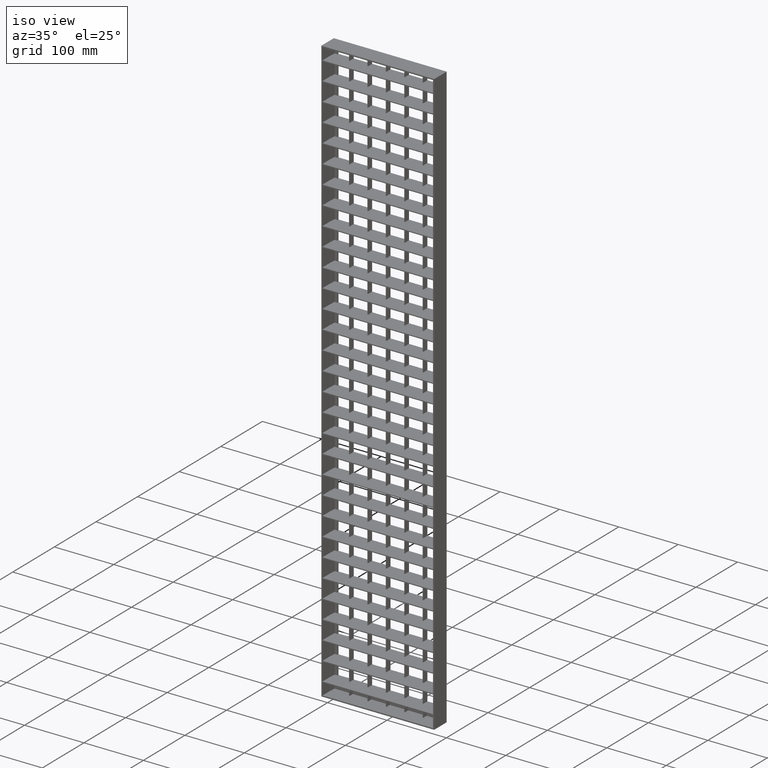
[diagram: clean part render]
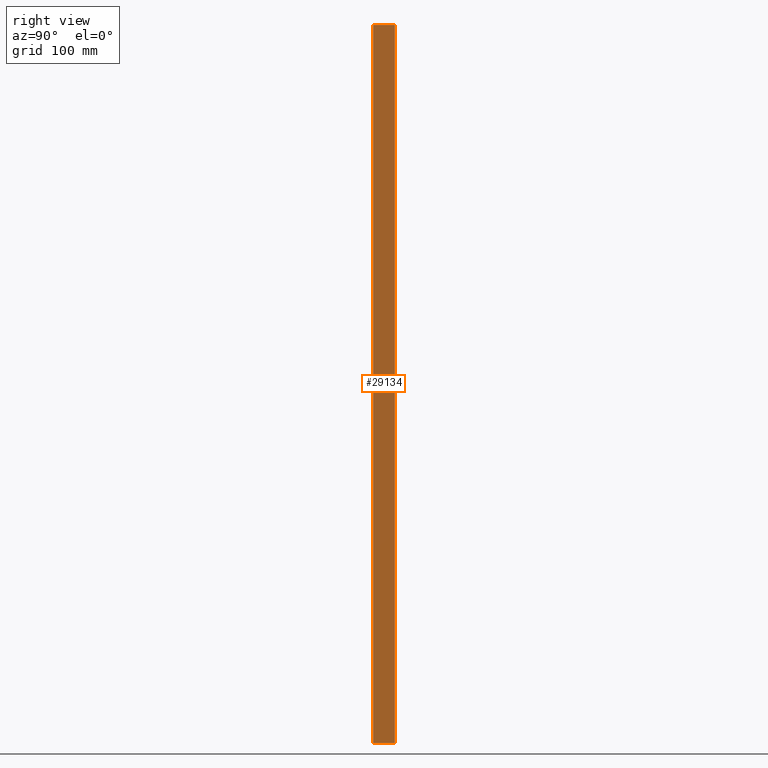
[diagram: tour spotlight — one face highlighted and labeled with its STEP entity id]
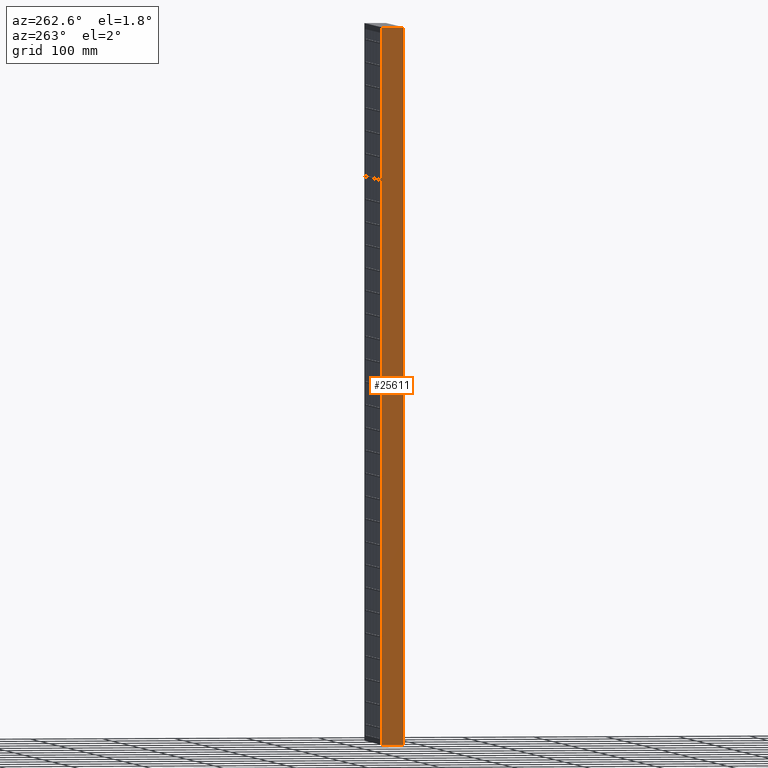
[diagram: tour spotlight — one face highlighted and labeled with its STEP entity id]
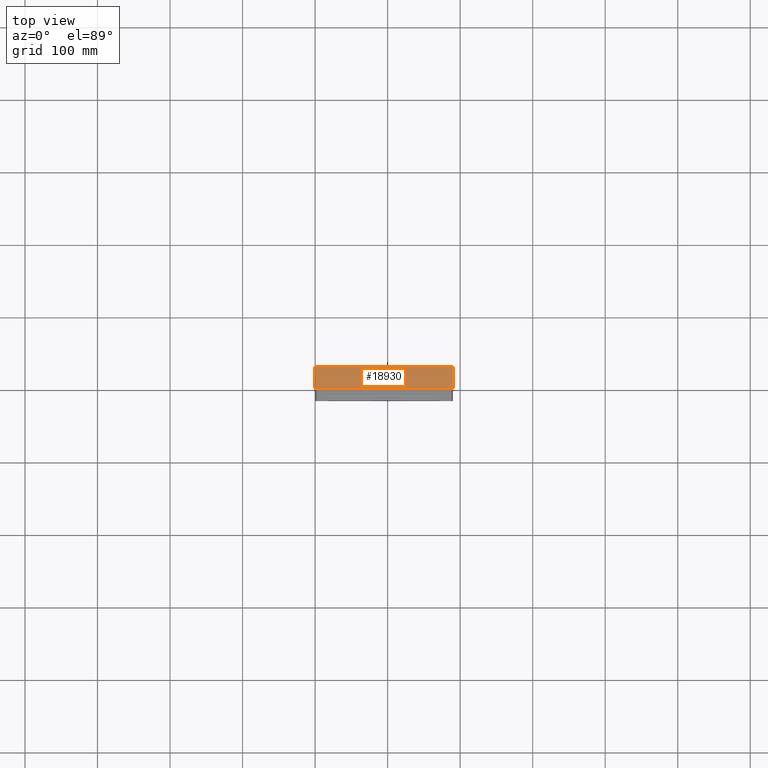
[diagram: tour spotlight — one face highlighted and labeled with its STEP entity id]
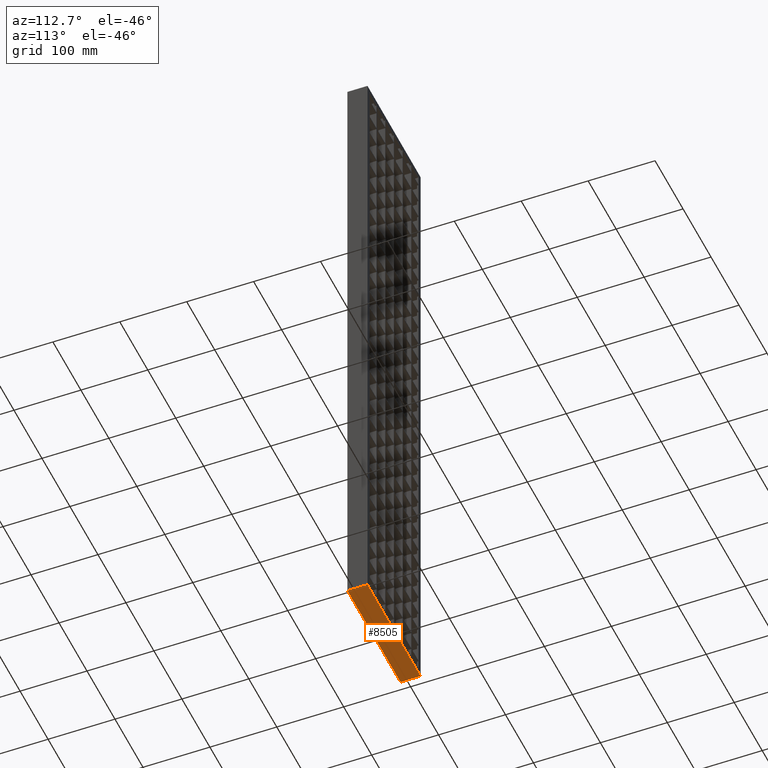
[diagram: tour spotlight — one face highlighted and labeled with its STEP entity id]
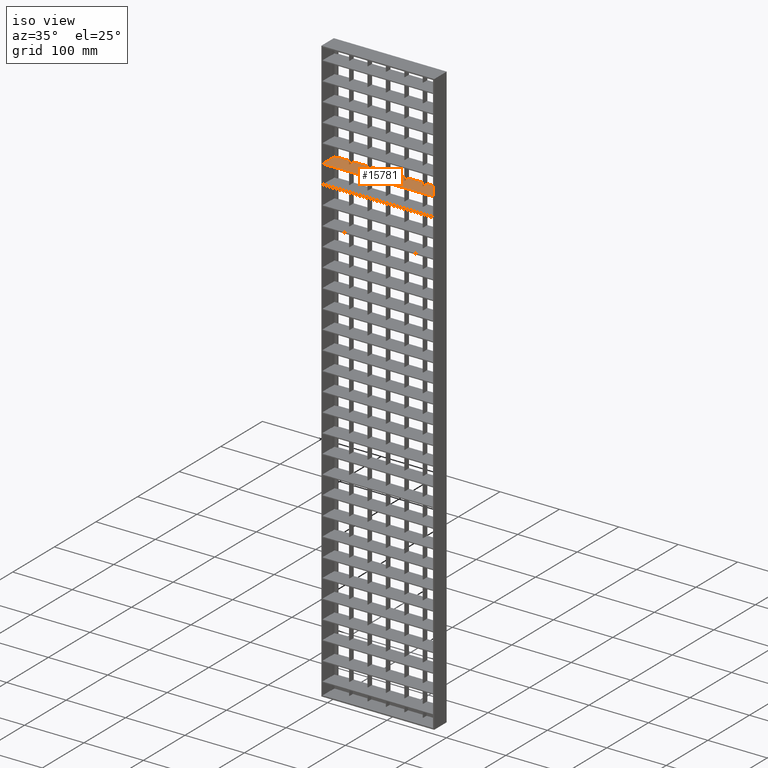
[diagram: tour spotlight — one face highlighted and labeled with its STEP entity id]
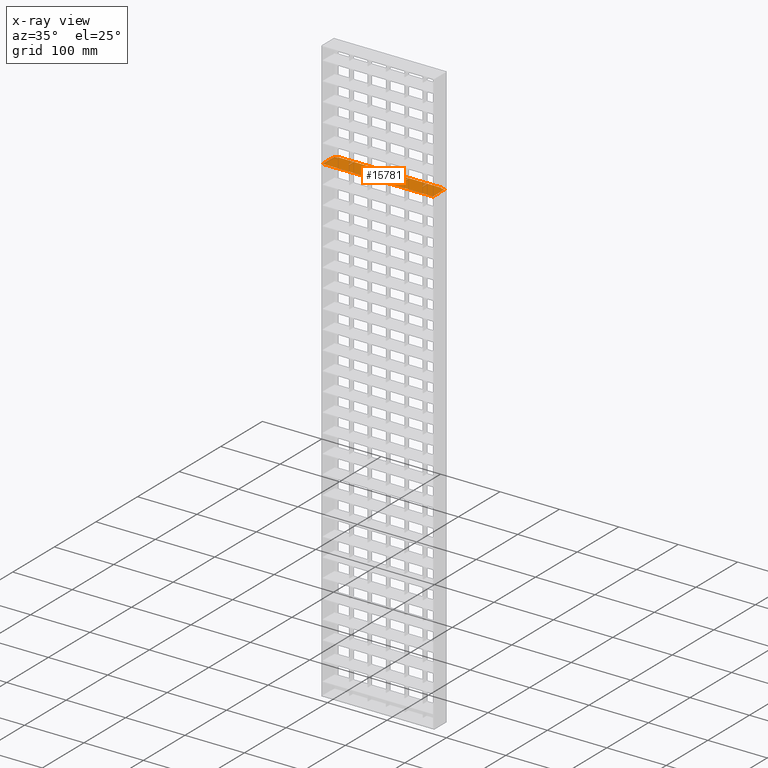
[diagram: x-ray of the same camera — body ghosted, this tour face saturated]
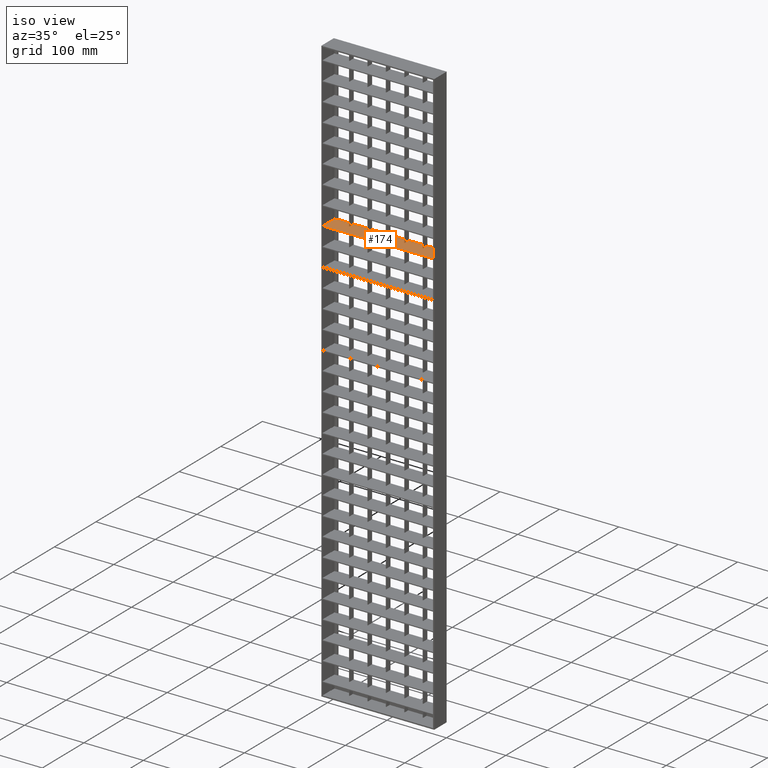
[diagram: tour spotlight — one face highlighted and labeled with its STEP entity id]
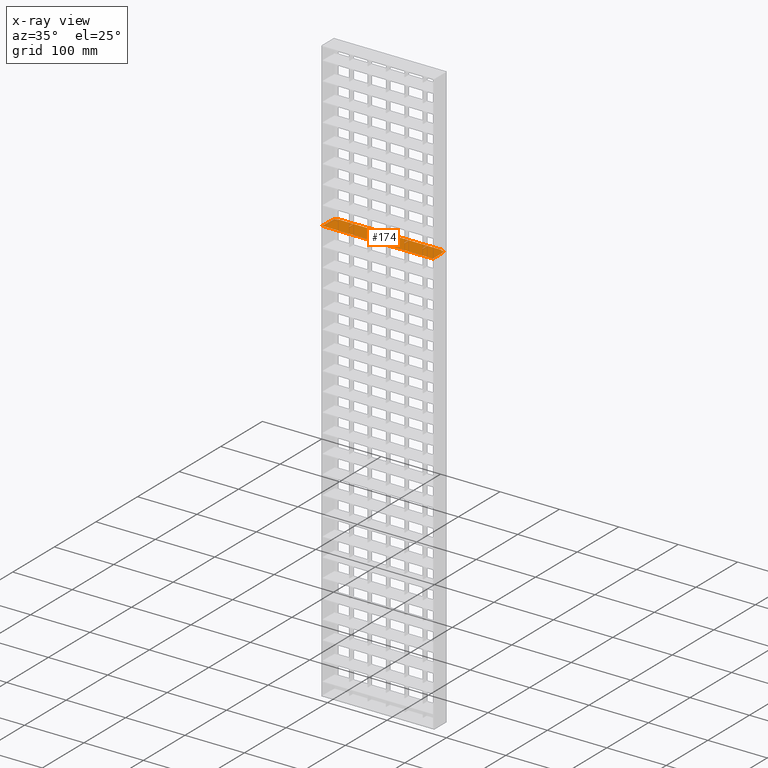
[diagram: x-ray of the same camera — body ghosted, this tour face saturated]
A machine part: a face-by-face anatomy tour. The part has 896 B-rep faces; the first image is the clean iso view, then the 6 largest visible faces are spotlighted one at a time (largest first), each with its STEP entity span.

Face 1 — right view, entity #29134. In plain terms, the highlighted planar face has unit normal (1, -0, -0).
Definition (entity closure, byte-faithful):
#1352 = DIRECTION ( 'NONE',  ( 5.607186993056345300E-017, 0.0000000000000000000, 1.000000000000000000 ) ) ;
#1578 = ORIENTED_EDGE ( 'NONE', *, *, #7704, .F. ) ;
#4970 = VERTEX_POINT ( 'NONE', #21859 ) ;
#7704 = EDGE_CURVE ( 'NONE', #17029, #23637, #22984, .T. ) ;
#8785 = CARTESIAN_POINT ( 'NONE',  ( 189.9999999999999400, 15.00000000000000000, -990.0000000000000000 ) ) ;
#8796 = LINE ( 'NONE', #15977, #27640 ) ;
#10700 = EDGE_CURVE ( 'NONE', #4970, #19106, #23129, .T. ) ;
#11301 = DIRECTION ( 'NONE',  ( 5.607186993056345300E-017, 0.0000000000000000000, 1.000000000000000000 ) ) ;
#11700 = AXIS2_PLACEMENT_3D ( 'NONE', #31270, #15573, #28543 ) ;
#12402 = CARTESIAN_POINT ( 'NONE',  ( 190.0000000000000000, -15.00000000000000000, -990.0000000000000000 ) ) ;
#15146 = VECTOR ( 'NONE', #1352, 1000.000000000000000 ) ;
#15254 = FACE_OUTER_BOUND ( 'NONE', #22521, .T. ) ;
#15410 = ORIENTED_EDGE ( 'NONE', *, *, #10700, .T. ) ;
#15573 = DIRECTION ( 'NONE',  ( 1.000000000000000000, -3.061616997868382600E-016, -5.607186993056345300E-017 ) ) ;
#15977 = CARTESIAN_POINT ( 'NONE',  ( 190.0000000000000300, 14.99999999999965500, 0.0000000000000000000 ) ) ;
#16370 = VECTOR ( 'NONE', #18693, 1000.000000000000000 ) ;
#16944 = ORIENTED_EDGE ( 'NONE', *, *, #30506, .T. ) ;
#17029 = VERTEX_POINT ( 'NONE', #12402 ) ;
#17265 = EDGE_CURVE ( 'NONE', #19106, #23637, #8796, .T. ) ;
#18693 = DIRECTION ( 'NONE',  ( 3.061616997868382600E-016, 1.000000000000000000, -3.061616997868382600E-016 ) ) ;
#18988 = CARTESIAN_POINT ( 'NONE',  ( 190.0000000000000000, -15.00000000000000000, -990.0000000000000000 ) ) ;
#19106 = VERTEX_POINT ( 'NONE', #28310 ) ;
#21203 = CARTESIAN_POINT ( 'NONE',  ( 189.9999999999999700, 14.99999999999995900, -990.0000000000000000 ) ) ;
#21859 = CARTESIAN_POINT ( 'NONE',  ( 189.9999999999999400, 15.00000000000000000, -990.0000000000000000 ) ) ;
#22521 = EDGE_LOOP ( 'NONE', ( #15410, #25048, #1578, #16944 ) ) ;
#22960 = LINE ( 'NONE', #21203, #16370 ) ;
#22984 = LINE ( 'NONE', #18988, #15146 ) ;
#23129 = LINE ( 'NONE', #8785, #30886 ) ;
#23637 = VERTEX_POINT ( 'NONE', #32762 ) ;
#25048 = ORIENTED_EDGE ( 'NONE', *, *, #17265, .T. ) ;
#26754 = DIRECTION ( 'NONE',  ( -3.061616997868382600E-016, -1.000000000000000000, -3.061616997868383600E-016 ) ) ;
#27640 = VECTOR ( 'NONE', #26754, 1000.000000000000000 ) ;
#28310 = CARTESIAN_POINT ( 'NONE',  ( 190.0000000000000000, 15.00000000000000000, -2.775557561562891400E-014 ) ) ;
#28543 = DIRECTION ( 'NONE',  ( 3.061616997868382600E-016, 1.000000000000000000, 0.0000000000000000000 ) ) ;
#28751 = PLANE ( 'NONE',  #11700 ) ;
#29134 = ADVANCED_FACE ( 'NONE', ( #15254 ), #28751, .T. ) ;
#30506 = EDGE_CURVE ( 'NONE', #17029, #4970, #22960, .T. ) ;
#30886 = VECTOR ( 'NONE', #11301, 1000.000000000000000 ) ;
#31270 = CARTESIAN_POINT ( 'NONE',  ( 189.9999999999999700, 14.99999999999995900, -990.0000000000000000 ) ) ;
#32762 = CARTESIAN_POINT ( 'NONE',  ( 190.0000000000000600, -15.00000000000000000, 1.110223024625156500E-013 ) ) ;

Face 2 — auxiliary view, entity #25611. In plain terms, the highlighted planar face has unit normal (-1, -0, 0).
Definition (entity closure, byte-faithful):
#1347 = CARTESIAN_POINT ( 'NONE',  ( -4.898587196589410700E-015, 15.00000000000000000, -1052.096698785040000 ) ) ;
#2026 = DIRECTION ( 'NONE',  ( 3.061616997868382600E-016, -1.000000000000000000, 0.0000000000000000000 ) ) ;
#2729 = LINE ( 'NONE', #4209, #12513 ) ;
#2903 = ORIENTED_EDGE ( 'NONE', *, *, #30714, .F. ) ;
#3748 = AXIS2_PLACEMENT_3D ( 'NONE', #1347, #19548, #2026 ) ;
#4209 = CARTESIAN_POINT ( 'NONE',  ( -4.898587196589417000E-015, 15.00000000000001800, -990.0000000000000000 ) ) ;
#4393 = FACE_OUTER_BOUND ( 'NONE', #15118, .T. ) ;
#6542 = LINE ( 'NONE', #16387, #18024 ) ;
#6743 = DIRECTION ( 'NONE',  ( -0.0000000000000000000, -0.0000000000000000000, 1.000000000000000000 ) ) ;
#7227 = CARTESIAN_POINT ( 'NONE',  ( 8.326672684688661400E-014, 15.00000000000000000, -7.466180501988862600E-014 ) ) ;
#9574 = DIRECTION ( 'NONE',  ( 3.061616997868382600E-016, -1.000000000000000000, 3.061616997868382600E-016 ) ) ;
#10966 = ORIENTED_EDGE ( 'NONE', *, *, #20734, .T. ) ;
#12513 = VECTOR ( 'NONE', #9574, 1000.000000000000000 ) ;
#13861 = VERTEX_POINT ( 'NONE', #30416 ) ;
#14315 = VERTEX_POINT ( 'NONE', #32672 ) ;
#14585 = LINE ( 'NONE', #31421, #18311 ) ;
#14791 = CARTESIAN_POINT ( 'NONE',  ( 8.326672684688661400E-014, 15.00000000000000000, -7.466180501988862600E-014 ) ) ;
#15038 = EDGE_CURVE ( 'NONE', #15930, #21876, #16860, .T. ) ;
#15118 = EDGE_LOOP ( 'NONE', ( #25070, #25343, #2903, #10966 ) ) ;
#15930 = VERTEX_POINT ( 'NONE', #23312 ) ;
#16387 = CARTESIAN_POINT ( 'NONE',  ( -4.898587196589410700E-015, 15.00000000000000000, -1052.096698785040000 ) ) ;
#16860 = B_SPLINE_CURVE_WITH_KNOTS ( 'NONE', 3,
 ( #20235, #25161, #20354, #14791 ),
 .UNSPECIFIED., .F., .F.,
 ( 4, 4 ),
 ( 0.0000000000000000000, 1.000000000000000000 ),
 .UNSPECIFIED. ) ;
#18024 = VECTOR ( 'NONE', #6743, 1000.000000000000000 ) ;
#18311 = VECTOR ( 'NONE', #26061, 1000.000000000000000 ) ;
#19548 = DIRECTION ( 'NONE',  ( -1.000000000000000000, -3.061616997868382600E-016, 0.0000000000000000000 ) ) ;
#20235 = CARTESIAN_POINT ( 'NONE',  ( 2.143131898507868200E-015, -15.00000000000000000, 0.0000000000000000000 ) ) ;
#20354 = CARTESIAN_POINT ( 'NONE',  ( -1.836970198721028000E-015, 5.000000000000000900, 0.0000000000000000000 ) ) ;
#20734 = EDGE_CURVE ( 'NONE', #14315, #13861, #2729, .T. ) ;
#21876 = VERTEX_POINT ( 'NONE', #7227 ) ;
#23312 = CARTESIAN_POINT ( 'NONE',  ( 2.143131898507868200E-015, -15.00000000000000000, 0.0000000000000000000 ) ) ;
#25070 = ORIENTED_EDGE ( 'NONE', *, *, #25784, .T. ) ;
#25161 = CARTESIAN_POINT ( 'NONE',  ( 1.224646799147354400E-015, -5.000000000000000900, 0.0000000000000000000 ) ) ;
#25343 = ORIENTED_EDGE ( 'NONE', *, *, #15038, .T. ) ;
#25611 = ADVANCED_FACE ( 'NONE', ( #4393 ), #30625, .T. ) ;
#25784 = EDGE_CURVE ( 'NONE', #13861, #15930, #14585, .T. ) ;
#26061 = DIRECTION ( 'NONE',  ( -0.0000000000000000000, -0.0000000000000000000, 1.000000000000000000 ) ) ;
#30416 = CARTESIAN_POINT ( 'NONE',  ( 4.286263797015736500E-015, -15.00000000000000000, -990.0000000000000000 ) ) ;
#30625 = PLANE ( 'NONE',  #3748 ) ;
#30714 = EDGE_CURVE ( 'NONE', #14315, #21876, #6542, .T. ) ;
#31421 = CARTESIAN_POINT ( 'NONE',  ( 4.286263797015736500E-015, -15.00000000000000000, -1052.096698785040000 ) ) ;
#32672 = CARTESIAN_POINT ( 'NONE',  ( -4.898587196589410700E-015, 15.00000000000000000, -990.0000000000000000 ) ) ;

Face 3 — top view, entity #18930. In plain terms, the highlighted planar face has unit normal (0, 0, -1).
Definition (entity closure, byte-faithful):
#45 = FACE_OUTER_BOUND ( 'NONE', #3443, .T. ) ;
#558 = EDGE_CURVE ( 'NONE', #19106, #21876, #1029, .T. ) ;
#1029 = LINE ( 'NONE', #29113, #13265 ) ;
#1142 = EDGE_CURVE ( 'NONE', #23637, #15930, #13614, .T. ) ;
#1485 = AXIS2_PLACEMENT_3D ( 'NONE', #11563, #25468, #12123 ) ;
#3443 = EDGE_LOOP ( 'NONE', ( #17018, #19279, #21027, #25518 ) ) ;
#7227 = CARTESIAN_POINT ( 'NONE',  ( 8.326672684688661400E-014, 15.00000000000000000, -7.466180501988862600E-014 ) ) ;
#8796 = LINE ( 'NONE', #15977, #27640 ) ;
#11563 = CARTESIAN_POINT ( 'NONE',  ( 190.0000000000000300, 14.99999999999965500, 0.0000000000000000000 ) ) ;
#12123 = DIRECTION ( 'NONE',  ( -1.000000000000000000, 0.0000000000000000000, -3.929568685257302500E-016 ) ) ;
#13265 = VECTOR ( 'NONE', #23533, 1000.000000000000000 ) ;
#13614 = LINE ( 'NONE', #14145, #16510 ) ;
#14145 = CARTESIAN_POINT ( 'NONE',  ( 190.0000000000000600, -15.00000000000000000, 1.110223024625156500E-013 ) ) ;
#14791 = CARTESIAN_POINT ( 'NONE',  ( 8.326672684688661400E-014, 15.00000000000000000, -7.466180501988862600E-014 ) ) ;
#15038 = EDGE_CURVE ( 'NONE', #15930, #21876, #16860, .T. ) ;
#15930 = VERTEX_POINT ( 'NONE', #23312 ) ;
#15977 = CARTESIAN_POINT ( 'NONE',  ( 190.0000000000000300, 14.99999999999965500, 0.0000000000000000000 ) ) ;
#16510 = VECTOR ( 'NONE', #19582, 1000.000000000000000 ) ;
#16860 = B_SPLINE_CURVE_WITH_KNOTS ( 'NONE', 3,
 ( #20235, #25161, #20354, #14791 ),
 .UNSPECIFIED., .F., .F.,
 ( 4, 4 ),
 ( 0.0000000000000000000, 1.000000000000000000 ),
 .UNSPECIFIED. ) ;
#17018 = ORIENTED_EDGE ( 'NONE', *, *, #558, .T. ) ;
#17265 = EDGE_CURVE ( 'NONE', #19106, #23637, #8796, .T. ) ;
#18930 = ADVANCED_FACE ( 'NONE', ( #45 ), #20096, .F. ) ;
#19106 = VERTEX_POINT ( 'NONE', #28310 ) ;
#19279 = ORIENTED_EDGE ( 'NONE', *, *, #15038, .F. ) ;
#19582 = DIRECTION ( 'NONE',  ( -1.000000000000000000, 0.0000000000000000000, -3.929568685257302500E-016 ) ) ;
#20096 = PLANE ( 'NONE',  #1485 ) ;
#20235 = CARTESIAN_POINT ( 'NONE',  ( 2.143131898507868200E-015, -15.00000000000000000, 0.0000000000000000000 ) ) ;
#20354 = CARTESIAN_POINT ( 'NONE',  ( -1.836970198721028000E-015, 5.000000000000000900, 0.0000000000000000000 ) ) ;
#21027 = ORIENTED_EDGE ( 'NONE', *, *, #1142, .F. ) ;
#21876 = VERTEX_POINT ( 'NONE', #7227 ) ;
#23312 = CARTESIAN_POINT ( 'NONE',  ( 2.143131898507868200E-015, -15.00000000000000000, 0.0000000000000000000 ) ) ;
#23533 = DIRECTION ( 'NONE',  ( -1.000000000000000000, 0.0000000000000000000, -3.929568685257302500E-016 ) ) ;
#23637 = VERTEX_POINT ( 'NONE', #32762 ) ;
#25161 = CARTESIAN_POINT ( 'NONE',  ( 1.224646799147354400E-015, -5.000000000000000900, 0.0000000000000000000 ) ) ;
#25468 = DIRECTION ( 'NONE',  ( 3.929568685257302500E-016, 3.061616997868382600E-016, -1.000000000000000000 ) ) ;
#25518 = ORIENTED_EDGE ( 'NONE', *, *, #17265, .F. ) ;
#26754 = DIRECTION ( 'NONE',  ( -3.061616997868382600E-016, -1.000000000000000000, -3.061616997868383600E-016 ) ) ;
#27640 = VECTOR ( 'NONE', #26754, 1000.000000000000000 ) ;
#28310 = CARTESIAN_POINT ( 'NONE',  ( 190.0000000000000000, 15.00000000000000000, -2.775557561562891400E-014 ) ) ;
#29113 = CARTESIAN_POINT ( 'NONE',  ( 190.0000000000000000, 15.00000000000000000, -2.775557561562891400E-014 ) ) ;
#32762 = CARTESIAN_POINT ( 'NONE',  ( 190.0000000000000600, -15.00000000000000000, 1.110223024625156500E-013 ) ) ;

Face 4 — auxiliary view, entity #8505. In plain terms, the highlighted planar face has unit normal (-0, 0, 1).
Definition (entity closure, byte-faithful):
#1614 = FACE_OUTER_BOUND ( 'NONE', #5045, .T. ) ;
#2704 = DIRECTION ( 'NONE',  ( -0.0000000000000000000, 3.061616997868382600E-016, 1.000000000000000000 ) ) ;
#2729 = LINE ( 'NONE', #4209, #12513 ) ;
#3626 = ORIENTED_EDGE ( 'NONE', *, *, #23255, .F. ) ;
#4209 = CARTESIAN_POINT ( 'NONE',  ( -4.898587196589417000E-015, 15.00000000000001800, -990.0000000000000000 ) ) ;
#4879 = PLANE ( 'NONE',  #17123 ) ;
#4970 = VERTEX_POINT ( 'NONE', #21859 ) ;
#4990 = LINE ( 'NONE', #21099, #11118 ) ;
#5045 = EDGE_LOOP ( 'NONE', ( #19423, #3626, #16202, #15390 ) ) ;
#8505 = ADVANCED_FACE ( 'NONE', ( #1614 ), #4879, .F. ) ;
#9574 = DIRECTION ( 'NONE',  ( 3.061616997868382600E-016, -1.000000000000000000, 3.061616997868382600E-016 ) ) ;
#11118 = VECTOR ( 'NONE', #13279, 1000.000000000000000 ) ;
#12229 = LINE ( 'NONE', #15686, #13894 ) ;
#12402 = CARTESIAN_POINT ( 'NONE',  ( 190.0000000000000000, -15.00000000000000000, -990.0000000000000000 ) ) ;
#12513 = VECTOR ( 'NONE', #9574, 1000.000000000000000 ) ;
#12742 = EDGE_CURVE ( 'NONE', #14315, #4970, #12229, .T. ) ;
#12749 = CARTESIAN_POINT ( 'NONE',  ( -4.898587196589417000E-015, 15.00000000000001800, -990.0000000000000000 ) ) ;
#12864 = DIRECTION ( 'NONE',  ( 0.0000000000000000000, -1.000000000000000000, 3.061616997868382600E-016 ) ) ;
#13279 = DIRECTION ( 'NONE',  ( 1.000000000000000000, 0.0000000000000000000, 0.0000000000000000000 ) ) ;
#13861 = VERTEX_POINT ( 'NONE', #30416 ) ;
#13894 = VECTOR ( 'NONE', #33910, 1000.000000000000000 ) ;
#14315 = VERTEX_POINT ( 'NONE', #32672 ) ;
#15390 = ORIENTED_EDGE ( 'NONE', *, *, #12742, .T. ) ;
#15686 = CARTESIAN_POINT ( 'NONE',  ( -4.898587196589410700E-015, 15.00000000000000000, -990.0000000000000000 ) ) ;
#16202 = ORIENTED_EDGE ( 'NONE', *, *, #20734, .F. ) ;
#16370 = VECTOR ( 'NONE', #18693, 1000.000000000000000 ) ;
#17029 = VERTEX_POINT ( 'NONE', #12402 ) ;
#17123 = AXIS2_PLACEMENT_3D ( 'NONE', #12749, #2704, #12864 ) ;
#18693 = DIRECTION ( 'NONE',  ( 3.061616997868382600E-016, 1.000000000000000000, -3.061616997868382600E-016 ) ) ;
#19423 = ORIENTED_EDGE ( 'NONE', *, *, #30506, .F. ) ;
#20734 = EDGE_CURVE ( 'NONE', #14315, #13861, #2729, .T. ) ;
#21099 = CARTESIAN_POINT ( 'NONE',  ( 4.286263797015736500E-015, -15.00000000000000000, -990.0000000000000000 ) ) ;
#21203 = CARTESIAN_POINT ( 'NONE',  ( 189.9999999999999700, 14.99999999999995900, -990.0000000000000000 ) ) ;
#21859 = CARTESIAN_POINT ( 'NONE',  ( 189.9999999999999400, 15.00000000000000000, -990.0000000000000000 ) ) ;
#22960 = LINE ( 'NONE', #21203, #16370 ) ;
#23255 = EDGE_CURVE ( 'NONE', #13861, #17029, #4990, .T. ) ;
#30416 = CARTESIAN_POINT ( 'NONE',  ( 4.286263797015736500E-015, -15.00000000000000000, -990.0000000000000000 ) ) ;
#30506 = EDGE_CURVE ( 'NONE', #17029, #4970, #22960, .T. ) ;
#32672 = CARTESIAN_POINT ( 'NONE',  ( -4.898587196589410700E-015, 15.00000000000000000, -990.0000000000000000 ) ) ;
#33910 = DIRECTION ( 'NONE',  ( 1.000000000000000000, 0.0000000000000000000, 0.0000000000000000000 ) ) ;

Face 5 — iso view, entity #15781. An x-ray twin of the same camera follows (body ghosted, this face saturated) — the face is partly hidden behind the body. In plain terms, the highlighted planar face has unit normal (0, 0, 1).
Definition (entity closure, byte-faithful):
#159 = VECTOR ( 'NONE', #26565, 1000.000000000000000 ) ;
#225 = CARTESIAN_POINT ( 'NONE',  ( 7.999999999999996400, 13.00000000000000400, -179.2500000000000300 ) ) ;
#305 = LINE ( 'NONE', #27065, #23676 ) ;
#894 = CARTESIAN_POINT ( 'NONE',  ( 33.49999999999997200, 5.000000000000004400, -179.2500000000000300 ) ) ;
#1019 = EDGE_CURVE ( 'NONE', #20388, #29657, #7909, .T. ) ;
#1270 = VECTOR ( 'NONE', #32149, 1000.000000000000000 ) ;
#1324 = VECTOR ( 'NONE', #7806, 1000.000000000000000 ) ;
#1504 = VERTEX_POINT ( 'NONE', #15274 ) ;
#1618 = CARTESIAN_POINT ( 'NONE',  ( 33.49999999999997200, -14.99999999999994000, -179.2500000000000300 ) ) ;
#1686 = ORIENTED_EDGE ( 'NONE', *, *, #24105, .F. ) ;
#1777 = VERTEX_POINT ( 'NONE', #894 ) ;
#2144 = CARTESIAN_POINT ( 'NONE',  ( 156.5000000000000300, 15.00000000000003900, -179.2500000000000300 ) ) ;
#2172 = VECTOR ( 'NONE', #19618, 1000.000000000000000 ) ;
#2230 = CARTESIAN_POINT ( 'NONE',  ( 95.49999999999997200, -14.99999999999994000, -179.2500000000000300 ) ) ;
#2255 = CARTESIAN_POINT ( 'NONE',  ( 2.000000000000001800, -15.00000000000000700, -179.2500000000000300 ) ) ;
#2291 = CARTESIAN_POINT ( 'NONE',  ( 156.5000000000000300, -14.99999999999994000, -179.2500000000000300 ) ) ;
#2610 = VECTOR ( 'NONE', #26514, 1000.000000000000000 ) ;
#2644 = CARTESIAN_POINT ( 'NONE',  ( 126.5000000000000600, 15.00000000000000200, -179.2500000000002600 ) ) ;
#2877 = LINE ( 'NONE', #18514, #27883 ) ;
#3456 = CARTESIAN_POINT ( 'NONE',  ( 182.0000000000000600, 12.99999999999991300, -179.2500000000000300 ) ) ;
#3474 = VERTEX_POINT ( 'NONE', #33657 ) ;
#3488 = DIRECTION ( 'NONE',  ( 1.000000000000000000, 0.0000000000000000000, -0.0000000000000000000 ) ) ;
#3849 = LINE ( 'NONE', #25939, #12417 ) ;
#3902 = ORIENTED_EDGE ( 'NONE', *, *, #25460, .F. ) ;
#3939 = FACE_OUTER_BOUND ( 'NONE', #20138, .T. ) ;
#3984 = DIRECTION ( 'NONE',  ( -1.000000000000000000, 0.0000000000000000000, 0.0000000000000000000 ) ) ;
#3986 = VERTEX_POINT ( 'NONE', #16825 ) ;
#4056 = DIRECTION ( 'NONE',  ( 0.0000000000000000000, 0.0000000000000000000, 1.000000000000000000 ) ) ;
#4281 = CARTESIAN_POINT ( 'NONE',  ( 32.49999999999997200, -14.99999999999994000, -179.2500000000000300 ) ) ;
#4318 = DIRECTION ( 'NONE',  ( -1.000000000000000000, -3.061616997868382600E-016, 0.0000000000000000000 ) ) ;
#4358 = EDGE_CURVE ( 'NONE', #30830, #33189, #13730, .T. ) ;
#4415 = CARTESIAN_POINT ( 'NONE',  ( 63.49999999999997200, -14.99999999999994000, -179.2500000000000300 ) ) ;
#4473 = ORIENTED_EDGE ( 'NONE', *, *, #17020, .T. ) ;
#4643 = VERTEX_POINT ( 'NONE', #20076 ) ;
#5122 = VECTOR ( 'NONE', #4318, 1000.000000000000000 ) ;
#5324 = DIRECTION ( 'NONE',  ( -1.000000000000000000, 0.0000000000000000000, 0.0000000000000000000 ) ) ;
#5770 = CARTESIAN_POINT ( 'NONE',  ( 218.0374765917512100, 5.000000000000000900, -179.2500000000000300 ) ) ;
#5870 = CARTESIAN_POINT ( 'NONE',  ( 94.99999999999994300, 13.00000000000000400, -179.2500000000000300 ) ) ;
#5974 = CARTESIAN_POINT ( 'NONE',  ( 33.49999999999997200, 15.00000000000000200, -179.2500000000000300 ) ) ;
#6111 = CARTESIAN_POINT ( 'NONE',  ( 2.499999999999974200, 13.00000000000000400, -179.2500000000000300 ) ) ;
#6209 = LINE ( 'NONE', #18713, #1324 ) ;
#6524 = EDGE_CURVE ( 'NONE', #24657, #9382, #24671, .T. ) ;
#6561 = LINE ( 'NONE', #4415, #14325 ) ;
#6630 = CARTESIAN_POINT ( 'NONE',  ( 218.0374765917511900, 15.00000000000005900, -179.2500000000000300 ) ) ;
#6790 = LINE ( 'NONE', #1618, #23217 ) ;
#6851 = LINE ( 'NONE', #26530, #13802 ) ;
#6984 = ORIENTED_EDGE ( 'NONE', *, *, #25401, .T. ) ;
#7247 = EDGE_CURVE ( 'NONE', #31078, #4643, #30708, .T. ) ;
#7386 = VECTOR ( 'NONE', #23104, 1000.000000000000000 ) ;
#7469 = CARTESIAN_POINT ( 'NONE',  ( 64.49999999999997200, 5.000000000000004400, -179.2500000000000300 ) ) ;
#7651 = DIRECTION ( 'NONE',  ( -1.000000000000000000, 0.0000000000000000000, 0.0000000000000000000 ) ) ;
#7769 = VECTOR ( 'NONE', #15105, 1000.000000000000000 ) ;
#7806 = DIRECTION ( 'NONE',  ( -1.000000000000000000, -3.061616997868382600E-016, 0.0000000000000000000 ) ) ;
#7909 = LINE ( 'NONE', #10947, #159 ) ;
#8054 = LINE ( 'NONE', #8738, #11343 ) ;
#8252 = CARTESIAN_POINT ( 'NONE',  ( 218.0374765917511900, 15.00000000000005900, -179.2500000000000300 ) ) ;
#8533 = ORIENTED_EDGE ( 'NONE', *, *, #32827, .F. ) ;
#8727 = VECTOR ( 'NONE', #28197, 1000.000000000000000 ) ;
#8738 = CARTESIAN_POINT ( 'NONE',  ( 2.499999999999974200, -14.99999999999994000, -179.2500000000000300 ) ) ;
#8778 = CARTESIAN_POINT ( 'NONE',  ( 156.5000000000000300, 5.000000000000002700, -179.2500000000002600 ) ) ;
#8937 = VERTEX_POINT ( 'NONE', #22853 ) ;
#9261 = EDGE_CURVE ( 'NONE', #31119, #33044, #305, .T. ) ;
#9382 = VERTEX_POINT ( 'NONE', #27404 ) ;
#9454 = CARTESIAN_POINT ( 'NONE',  ( 218.0374765917511900, 15.00000000000005900, -179.2500000000000300 ) ) ;
#9672 = LINE ( 'NONE', #29318, #29786 ) ;
#9833 = CARTESIAN_POINT ( 'NONE',  ( 157.5000000000000300, -14.99999999999994000, -179.2500000000000300 ) ) ;
#10030 = CARTESIAN_POINT ( 'NONE',  ( 7.999999999999996400, 13.00000000000000400, -179.2500000000000300 ) ) ;
#10077 = ORIENTED_EDGE ( 'NONE', *, *, #31801, .T. ) ;
#10508 = EDGE_CURVE ( 'NONE', #31838, #31119, #14084, .T. ) ;
#10888 = CARTESIAN_POINT ( 'NONE',  ( 7.999999999999994700, 15.00000000000000400, -179.2500000000000300 ) ) ;
#10901 = DIRECTION ( 'NONE',  ( -0.0000000000000000000, 1.000000000000000000, 0.0000000000000000000 ) ) ;
#10947 = CARTESIAN_POINT ( 'NONE',  ( 2.000000000000004900, -15.00000000000000000, -179.2500000000000300 ) ) ;
#11211 = LINE ( 'NONE', #4281, #17391 ) ;
#11244 = EDGE_CURVE ( 'NONE', #22156, #30830, #11559, .T. ) ;
#11290 = ORIENTED_EDGE ( 'NONE', *, *, #6524, .T. ) ;
#11343 = VECTOR ( 'NONE', #16891, 1000.000000000000000 ) ;
#11559 = LINE ( 'NONE', #3456, #2172 ) ;
#11702 = CARTESIAN_POINT ( 'NONE',  ( 218.0374765917512100, -14.99999999999994000, -179.2500000000000300 ) ) ;
#11782 = CARTESIAN_POINT ( 'NONE',  ( 218.0374765917512100, -14.99999999999994000, -179.2500000000000300 ) ) ;
#11975 = VERTEX_POINT ( 'NONE', #8778 ) ;
#11991 = LINE ( 'NONE', #5870, #2610 ) ;
#12069 = ORIENTED_EDGE ( 'NONE', *, *, #29604, .T. ) ;
#12166 = VERTEX_POINT ( 'NONE', #28360 ) ;
#12174 = EDGE_CURVE ( 'NONE', #26519, #14209, #14350, .T. ) ;
#12321 = EDGE_CURVE ( 'NONE', #24284, #1504, #2877, .T. ) ;
#12417 = VECTOR ( 'NONE', #13071, 1000.000000000000000 ) ;
#12453 = ORIENTED_EDGE ( 'NONE', *, *, #28631, .T. ) ;
#12481 = CARTESIAN_POINT ( 'NONE',  ( 187.5000000000000600, -14.99999999999994000, -179.2500000000000300 ) ) ;
#12803 = ORIENTED_EDGE ( 'NONE', *, *, #15373, .T. ) ;
#13071 = DIRECTION ( 'NONE',  ( -1.000000000000000000, -3.061616997868382600E-016, 0.0000000000000000000 ) ) ;
#13496 = LINE ( 'NONE', #13800, #1270 ) ;
#13526 = ORIENTED_EDGE ( 'NONE', *, *, #4358, .T. ) ;
#13730 = LINE ( 'NONE', #26534, #14941 ) ;
#13800 = CARTESIAN_POINT ( 'NONE',  ( 218.0374765917512100, 5.000000000000000900, -179.2500000000000300 ) ) ;
#13802 = VECTOR ( 'NONE', #5324, 1000.000000000000000 ) ;
#14084 = LINE ( 'NONE', #10030, #26847 ) ;
#14209 = VERTEX_POINT ( 'NONE', #21913 ) ;
#14267 = CARTESIAN_POINT ( 'NONE',  ( 125.5000000000000600, 5.000000000000002700, -179.2500000000002600 ) ) ;
#14325 = VECTOR ( 'NONE', #20135, 1000.000000000000000 ) ;
#14350 = LINE ( 'NONE', #18167, #7386 ) ;
#14408 = ORIENTED_EDGE ( 'NONE', *, *, #11244, .T. ) ;
#14410 = CARTESIAN_POINT ( 'NONE',  ( 63.49999999999997200, 5.000000000000000900, -179.2500000000000300 ) ) ;
#14512 = VERTEX_POINT ( 'NONE', #25123 ) ;
#14912 = ORIENTED_EDGE ( 'NONE', *, *, #30272, .T. ) ;
#14941 = VECTOR ( 'NONE', #16326, 1000.000000000000000 ) ;
#15009 = CARTESIAN_POINT ( 'NONE',  ( 95.49999999999997200, 15.00000000000002000, -179.2500000000000300 ) ) ;
#15105 = DIRECTION ( 'NONE',  ( 0.0000000000000000000, -1.000000000000000000, 0.0000000000000000000 ) ) ;
#15234 = VERTEX_POINT ( 'NONE', #21440 ) ;
#15274 = CARTESIAN_POINT ( 'NONE',  ( 64.49999999999997200, 15.00000000000001200, -179.2500000000000300 ) ) ;
#15373 = EDGE_CURVE ( 'NONE', #14512, #24618, #20404, .T. ) ;
#15689 = ORIENTED_EDGE ( 'NONE', *, *, #21387, .F. ) ;
#15696 = LINE ( 'NONE', #11782, #8727 ) ;
#15781 = ADVANCED_FACE ( 'NONE', ( #3939 ), #33158, .T. ) ;
#15947 = ORIENTED_EDGE ( 'NONE', *, *, #29096, .F. ) ;
#16057 = VECTOR ( 'NONE', #3488, 1000.000000000000000 ) ;
#16326 = DIRECTION ( 'NONE',  ( -1.000000000000000000, -3.061616997868382600E-016, 0.0000000000000000000 ) ) ;
#16460 = LINE ( 'NONE', #5770, #16057 ) ;
#16729 = VERTEX_POINT ( 'NONE', #29535 ) ;
#16825 = CARTESIAN_POINT ( 'NONE',  ( 32.49999999999997200, 15.00000000000000200, -179.2500000000002600 ) ) ;
#16891 = DIRECTION ( 'NONE',  ( -0.0000000000000000000, 1.000000000000000000, 0.0000000000000000000 ) ) ;
#16893 = VERTEX_POINT ( 'NONE', #14267 ) ;
#17020 = EDGE_CURVE ( 'NONE', #31599, #26519, #30535, .T. ) ;
#17391 = VECTOR ( 'NONE', #17476, 1000.000000000000000 ) ;
#17476 = DIRECTION ( 'NONE',  ( 0.0000000000000000000, -1.000000000000000000, 0.0000000000000000000 ) ) ;
#17617 = ORIENTED_EDGE ( 'NONE', *, *, #28961, .F. ) ;
#17884 = LINE ( 'NONE', #19260, #26894 ) ;
#18153 = LINE ( 'NONE', #30927, #20634 ) ;
#18167 = CARTESIAN_POINT ( 'NONE',  ( 126.5000000000000600, -14.99999999999994000, -179.2500000000000300 ) ) ;
#18347 = DIRECTION ( 'NONE',  ( 1.000000000000000000, 0.0000000000000000000, -0.0000000000000000000 ) ) ;
#18511 = VECTOR ( 'NONE', #7651, 1000.000000000000000 ) ;
#18514 = CARTESIAN_POINT ( 'NONE',  ( 64.49999999999997200, -14.99999999999994000, -179.2500000000000300 ) ) ;
#18695 = EDGE_CURVE ( 'NONE', #21292, #25013, #6209, .T. ) ;
#18713 = CARTESIAN_POINT ( 'NONE',  ( 218.0374765917511900, 15.00000000000005900, -179.2500000000000300 ) ) ;
#19260 = CARTESIAN_POINT ( 'NONE',  ( 125.5000000000000600, -14.99999999999994000, -179.2500000000000300 ) ) ;
#19512 = DIRECTION ( 'NONE',  ( -1.000000000000000000, 0.0000000000000000000, 0.0000000000000000000 ) ) ;
#19618 = DIRECTION ( 'NONE',  ( 8.673617379884037400E-016, 1.000000000000000000, -0.0000000000000000000 ) ) ;
#19795 = EDGE_CURVE ( 'NONE', #11975, #31599, #22527, .T. ) ;
#19824 = DIRECTION ( 'NONE',  ( -1.000000000000000000, -3.061616997868382600E-016, 0.0000000000000000000 ) ) ;
#20076 = CARTESIAN_POINT ( 'NONE',  ( 95.49999999999997200, 5.000000000000004400, -179.2500000000000300 ) ) ;
#20135 = DIRECTION ( 'NONE',  ( 0.0000000000000000000, -1.000000000000000000, 0.0000000000000000000 ) ) ;
#20138 = EDGE_LOOP ( 'NONE', ( #8533, #11290, #23192, #10077, #14408, #13526, #14912, #6984, #33815, #4473, #23158, #20585, #33029, #12803, #28195, #24424, #3902, #12069, #25455, #15947, #1686, #33154, #23934, #30867, #15689, #12453, #31523, #31117, #31217, #31562, #31957, #17617 ) ) ;
#20388 = VERTEX_POINT ( 'NONE', #28458 ) ;
#20404 = LINE ( 'NONE', #8252, #30619 ) ;
#20471 = DIRECTION ( 'NONE',  ( 0.0000000000000000000, -1.000000000000000000, 0.0000000000000000000 ) ) ;
#20566 = LINE ( 'NONE', #6630, #26310 ) ;
#20585 = ORIENTED_EDGE ( 'NONE', *, *, #26650, .T. ) ;
#20634 = VECTOR ( 'NONE', #18347, 1000.000000000000000 ) ;
#20649 = EDGE_CURVE ( 'NONE', #16893, #14512, #17884, .T. ) ;
#20695 = EDGE_CURVE ( 'NONE', #1777, #25013, #6790, .T. ) ;
#21176 = VECTOR ( 'NONE', #20471, 1000.000000000000000 ) ;
#21292 = VERTEX_POINT ( 'NONE', #27110 ) ;
#21387 = EDGE_CURVE ( 'NONE', #3986, #3474, #11211, .T. ) ;
#21440 = CARTESIAN_POINT ( 'NONE',  ( 157.5000000000000300, 5.000000000000002700, -179.2500000000002600 ) ) ;
#21695 = DIRECTION ( 'NONE',  ( 0.0000000000000000000, -1.000000000000000000, 0.0000000000000000000 ) ) ;
#21856 = EDGE_CURVE ( 'NONE', #4643, #24618, #32099, .T. ) ;
#21913 = CARTESIAN_POINT ( 'NONE',  ( 126.5000000000000600, 5.000000000000002700, -179.2500000000002600 ) ) ;
#22029 = AXIS2_PLACEMENT_3D ( 'NONE', #11702, #4056, #24937 ) ;
#22104 = DIRECTION ( 'NONE',  ( -0.0000000000000000000, 1.000000000000000000, 0.0000000000000000000 ) ) ;
#22156 = VERTEX_POINT ( 'NONE', #24098 ) ;
#22364 = VERTEX_POINT ( 'NONE', #14410 ) ;
#22527 = LINE ( 'NONE', #2291, #33977 ) ;
#22546 = CARTESIAN_POINT ( 'NONE',  ( 218.0374765917512100, 5.000000000000000900, -179.2500000000000300 ) ) ;
#22608 = CARTESIAN_POINT ( 'NONE',  ( 157.5000000000000300, 15.00000000000000200, -179.2500000000002600 ) ) ;
#22739 = EDGE_CURVE ( 'NONE', #3474, #1777, #16460, .T. ) ;
#22849 = DIRECTION ( 'NONE',  ( -0.0000000000000000000, 1.000000000000000000, 0.0000000000000000000 ) ) ;
#22853 = CARTESIAN_POINT ( 'NONE',  ( 187.5000000000000600, 13.00000000000000400, -179.2500000000000300 ) ) ;
#23104 = DIRECTION ( 'NONE',  ( 0.0000000000000000000, -1.000000000000000000, 0.0000000000000000000 ) ) ;
#23158 = ORIENTED_EDGE ( 'NONE', *, *, #12174, .T. ) ;
#23184 = DIRECTION ( 'NONE',  ( -0.0000000000000000000, 1.000000000000000000, 0.0000000000000000000 ) ) ;
#23192 = ORIENTED_EDGE ( 'NONE', *, *, #24594, .T. ) ;
#23217 = VECTOR ( 'NONE', #24870, 1000.000000000000000 ) ;
#23281 = LINE ( 'NONE', #24368, #23680 ) ;
#23676 = VECTOR ( 'NONE', #19512, 1000.000000000000000 ) ;
#23680 = VECTOR ( 'NONE', #21695, 1000.000000000000000 ) ;
#23934 = ORIENTED_EDGE ( 'NONE', *, *, #20695, .F. ) ;
#24009 = EDGE_CURVE ( 'NONE', #20388, #16729, #13496, .T. ) ;
#24098 = CARTESIAN_POINT ( 'NONE',  ( 182.0000000000000600, 13.00000000000000400, -179.2500000000000300 ) ) ;
#24105 = EDGE_CURVE ( 'NONE', #21292, #22364, #6561, .T. ) ;
#24284 = VERTEX_POINT ( 'NONE', #7469 ) ;
#24368 = CARTESIAN_POINT ( 'NONE',  ( 94.49999999999997200, -14.99999999999994000, -179.2500000000000300 ) ) ;
#24424 = ORIENTED_EDGE ( 'NONE', *, *, #7247, .F. ) ;
#24594 = EDGE_CURVE ( 'NONE', #9382, #8937, #33578, .T. ) ;
#24618 = VERTEX_POINT ( 'NONE', #15009 ) ;
#24657 = VERTEX_POINT ( 'NONE', #33820 ) ;
#24671 = LINE ( 'NONE', #31138, #18511 ) ;
#24870 = DIRECTION ( 'NONE',  ( -0.0000000000000000000, 1.000000000000000000, 0.0000000000000000000 ) ) ;
#24937 = DIRECTION ( 'NONE',  ( 1.000000000000000000, 0.0000000000000000000, -0.0000000000000000000 ) ) ;
#25013 = VERTEX_POINT ( 'NONE', #5974 ) ;
#25123 = CARTESIAN_POINT ( 'NONE',  ( 125.5000000000000600, 15.00000000000003000, -179.2500000000000300 ) ) ;
#25188 = DIRECTION ( 'NONE',  ( 1.000000000000000000, 0.0000000000000000000, -0.0000000000000000000 ) ) ;
#25401 = EDGE_CURVE ( 'NONE', #15234, #11975, #6851, .T. ) ;
#25415 = VECTOR ( 'NONE', #25188, 1000.000000000000000 ) ;
#25455 = ORIENTED_EDGE ( 'NONE', *, *, #12321, .F. ) ;
#25460 = EDGE_CURVE ( 'NONE', #32747, #31078, #23281, .T. ) ;
#25542 = DIRECTION ( 'NONE',  ( 8.673617379884036500E-016, -1.000000000000000000, 0.0000000000000000000 ) ) ;
#25591 = EDGE_CURVE ( 'NONE', #16729, #33044, #8054, .T. ) ;
#25939 = CARTESIAN_POINT ( 'NONE',  ( 218.0374765917511900, 15.00000000000005900, -179.2500000000000300 ) ) ;
#26310 = VECTOR ( 'NONE', #19824, 1000.000000000000000 ) ;
#26514 = DIRECTION ( 'NONE',  ( -1.000000000000000000, 0.0000000000000000000, 0.0000000000000000000 ) ) ;
#26519 = VERTEX_POINT ( 'NONE', #2644 ) ;
#26530 = CARTESIAN_POINT ( 'NONE',  ( 218.0374765917512100, 5.000000000000000900, -179.2500000000000300 ) ) ;
#26534 = CARTESIAN_POINT ( 'NONE',  ( 218.0374765917511900, 15.00000000000005900, -179.2500000000000300 ) ) ;
#26565 = DIRECTION ( 'NONE',  ( -0.0000000000000000000, -1.000000000000000000, 0.0000000000000000000 ) ) ;
#26650 = EDGE_CURVE ( 'NONE', #14209, #16893, #9672, .T. ) ;
#26847 = VECTOR ( 'NONE', #25542, 1000.000000000000000 ) ;
#26894 = VECTOR ( 'NONE', #22104, 1000.000000000000000 ) ;
#27065 = CARTESIAN_POINT ( 'NONE',  ( 2.000000000000004900, 13.00000000000000400, -179.2500000000000300 ) ) ;
#27110 = CARTESIAN_POINT ( 'NONE',  ( 63.49999999999997200, 15.00000000000000200, -179.2500000000002600 ) ) ;
#27218 = VECTOR ( 'NONE', #23184, 1000.000000000000000 ) ;
#27384 = CARTESIAN_POINT ( 'NONE',  ( 182.0000000000000000, 15.00000000000000400, -179.2500000000000300 ) ) ;
#27404 = CARTESIAN_POINT ( 'NONE',  ( 187.5000000000000600, 5.000000000000002700, -179.2500000000002600 ) ) ;
#27883 = VECTOR ( 'NONE', #10901, 1000.000000000000000 ) ;
#28195 = ORIENTED_EDGE ( 'NONE', *, *, #21856, .F. ) ;
#28197 = DIRECTION ( 'NONE',  ( -1.000000000000000000, -3.061616997868382600E-016, 0.0000000000000000000 ) ) ;
#28345 = CARTESIAN_POINT ( 'NONE',  ( 188.0000000000000600, -14.99999999999994000, -179.2500000000000300 ) ) ;
#28360 = CARTESIAN_POINT ( 'NONE',  ( 188.0000000000000600, -15.00000000000000700, -179.2500000000000300 ) ) ;
#28458 = CARTESIAN_POINT ( 'NONE',  ( 2.000000000000004900, 5.000000000000000900, -179.2500000000000300 ) ) ;
#28631 = EDGE_CURVE ( 'NONE', #3986, #31838, #3849, .T. ) ;
#28695 = LINE ( 'NONE', #9833, #7769 ) ;
#28961 = EDGE_CURVE ( 'NONE', #12166, #29657, #15696, .T. ) ;
#29096 = EDGE_CURVE ( 'NONE', #22364, #24284, #18153, .T. ) ;
#29318 = CARTESIAN_POINT ( 'NONE',  ( 218.0374765917512100, 5.000000000000000900, -179.2500000000000300 ) ) ;
#29535 = CARTESIAN_POINT ( 'NONE',  ( 2.499999999999974200, 5.000000000000004400, -179.2500000000000300 ) ) ;
#29604 = EDGE_CURVE ( 'NONE', #32747, #1504, #20566, .T. ) ;
#29657 = VERTEX_POINT ( 'NONE', #2255 ) ;
#29786 = VECTOR ( 'NONE', #3984, 1000.000000000000000 ) ;
#29788 = LINE ( 'NONE', #28345, #21176 ) ;
#30272 = EDGE_CURVE ( 'NONE', #33189, #15234, #28695, .T. ) ;
#30535 = LINE ( 'NONE', #9454, #5122 ) ;
#30619 = VECTOR ( 'NONE', #33027, 1000.000000000000000 ) ;
#30708 = LINE ( 'NONE', #22546, #25415 ) ;
#30830 = VERTEX_POINT ( 'NONE', #27384 ) ;
#30867 = ORIENTED_EDGE ( 'NONE', *, *, #22739, .F. ) ;
#30927 = CARTESIAN_POINT ( 'NONE',  ( 218.0374765917512100, 5.000000000000000900, -179.2500000000000300 ) ) ;
#31078 = VERTEX_POINT ( 'NONE', #33761 ) ;
#31117 = ORIENTED_EDGE ( 'NONE', *, *, #9261, .T. ) ;
#31119 = VERTEX_POINT ( 'NONE', #225 ) ;
#31138 = CARTESIAN_POINT ( 'NONE',  ( 218.0374765917512100, 5.000000000000000900, -179.2500000000000300 ) ) ;
#31217 = ORIENTED_EDGE ( 'NONE', *, *, #25591, .F. ) ;
#31523 = ORIENTED_EDGE ( 'NONE', *, *, #10508, .T. ) ;
#31562 = ORIENTED_EDGE ( 'NONE', *, *, #24009, .F. ) ;
#31599 = VERTEX_POINT ( 'NONE', #2144 ) ;
#31801 = EDGE_CURVE ( 'NONE', #8937, #22156, #11991, .T. ) ;
#31838 = VERTEX_POINT ( 'NONE', #10888 ) ;
#31957 = ORIENTED_EDGE ( 'NONE', *, *, #1019, .T. ) ;
#32099 = LINE ( 'NONE', #2230, #27218 ) ;
#32149 = DIRECTION ( 'NONE',  ( 1.000000000000000000, 0.0000000000000000000, -0.0000000000000000000 ) ) ;
#32324 = VECTOR ( 'NONE', #22849, 1000.000000000000000 ) ;
#32747 = VERTEX_POINT ( 'NONE', #33608 ) ;
#32827 = EDGE_CURVE ( 'NONE', #24657, #12166, #29788, .T. ) ;
#33027 = DIRECTION ( 'NONE',  ( -1.000000000000000000, -3.061616997868382600E-016, 0.0000000000000000000 ) ) ;
#33029 = ORIENTED_EDGE ( 'NONE', *, *, #20649, .T. ) ;
#33044 = VERTEX_POINT ( 'NONE', #6111 ) ;
#33154 = ORIENTED_EDGE ( 'NONE', *, *, #18695, .T. ) ;
#33158 = PLANE ( 'NONE',  #22029 ) ;
#33189 = VERTEX_POINT ( 'NONE', #22608 ) ;
#33578 = LINE ( 'NONE', #12481, #32324 ) ;
#33608 = CARTESIAN_POINT ( 'NONE',  ( 94.49999999999997200, 15.00000000000000200, -179.2500000000002600 ) ) ;
#33643 = DIRECTION ( 'NONE',  ( -0.0000000000000000000, 1.000000000000000000, 0.0000000000000000000 ) ) ;
#33657 = CARTESIAN_POINT ( 'NONE',  ( 32.49999999999997200, 5.000000000000000900, -179.2500000000000300 ) ) ;
#33761 = CARTESIAN_POINT ( 'NONE',  ( 94.49999999999997200, 5.000000000000000900, -179.2500000000000300 ) ) ;
#33815 = ORIENTED_EDGE ( 'NONE', *, *, #19795, .T. ) ;
#33820 = CARTESIAN_POINT ( 'NONE',  ( 188.0000000000000600, 5.000000000000004400, -179.2500000000000300 ) ) ;
#33977 = VECTOR ( 'NONE', #33643, 1000.000000000000000 ) ;

Face 6 — iso view, entity #174. An x-ray twin of the same camera follows (body ghosted, this face saturated) — the face is partly hidden behind the body. In plain terms, the highlighted planar face has unit normal (0, 0, 1).
Definition (entity closure, byte-faithful):
#66 = VECTOR ( 'NONE', #19953, 1000.000000000000000 ) ;
#137 = CARTESIAN_POINT ( 'NONE',  ( 125.5000000000000600, 5.000000000000002700, -273.7500000000002800 ) ) ;
#174 = ADVANCED_FACE ( 'NONE', ( #30548 ), #6715, .T. ) ;
#253 = CARTESIAN_POINT ( 'NONE',  ( 157.5000000000000300, 15.00000000000000200, -273.7500000000002800 ) ) ;
#857 = DIRECTION ( 'NONE',  ( -1.000000000000000000, -3.061616997868382600E-016, 0.0000000000000000000 ) ) ;
#927 = VECTOR ( 'NONE', #2911, 1000.000000000000000 ) ;
#1183 = DIRECTION ( 'NONE',  ( 1.000000000000000000, 0.0000000000000000000, -0.0000000000000000000 ) ) ;
#1292 = VECTOR ( 'NONE', #9504, 1000.000000000000000 ) ;
#1317 = VECTOR ( 'NONE', #20876, 1000.000000000000000 ) ;
#1380 = CARTESIAN_POINT ( 'NONE',  ( 2.499999999999974200, 13.00000000000000400, -273.7500000000000600 ) ) ;
#1544 = ORIENTED_EDGE ( 'NONE', *, *, #30117, .F. ) ;
#1554 = CARTESIAN_POINT ( 'NONE',  ( 218.0374765917512100, 5.000000000000000900, -273.7500000000000600 ) ) ;
#1756 = EDGE_CURVE ( 'NONE', #19134, #33527, #13168, .T. ) ;
#1850 = ORIENTED_EDGE ( 'NONE', *, *, #29812, .F. ) ;
#1905 = VECTOR ( 'NONE', #21986, 1000.000000000000000 ) ;
#1908 = CARTESIAN_POINT ( 'NONE',  ( 156.5000000000000300, 15.00000000000003900, -273.7500000000000600 ) ) ;
#1963 = EDGE_CURVE ( 'NONE', #5585, #26872, #18533, .T. ) ;
#2051 = CARTESIAN_POINT ( 'NONE',  ( 218.0374765917512100, 5.000000000000000900, -273.7500000000000600 ) ) ;
#2125 = VECTOR ( 'NONE', #14655, 1000.000000000000000 ) ;
#2335 = ORIENTED_EDGE ( 'NONE', *, *, #10022, .T. ) ;
#2696 = VERTEX_POINT ( 'NONE', #28242 ) ;
#2807 = CARTESIAN_POINT ( 'NONE',  ( 64.49999999999997200, -14.99999999999994000, -273.7500000000000600 ) ) ;
#2810 = ORIENTED_EDGE ( 'NONE', *, *, #10485, .T. ) ;
#2818 = EDGE_CURVE ( 'NONE', #19553, #4143, #9835, .T. ) ;
#2880 = CARTESIAN_POINT ( 'NONE',  ( 126.5000000000000600, -14.99999999999994000, -273.7500000000000600 ) ) ;
#2911 = DIRECTION ( 'NONE',  ( 0.0000000000000000000, -1.000000000000000000, 0.0000000000000000000 ) ) ;
#2995 = ORIENTED_EDGE ( 'NONE', *, *, #26775, .T. ) ;
#3021 = LINE ( 'NONE', #14790, #7933 ) ;
#3235 = CARTESIAN_POINT ( 'NONE',  ( 156.5000000000000300, 5.000000000000002700, -273.7500000000002800 ) ) ;
#3279 = VERTEX_POINT ( 'NONE', #4117 ) ;
#3344 = ORIENTED_EDGE ( 'NONE', *, *, #30040, .T. ) ;
#3597 = DIRECTION ( 'NONE',  ( 0.0000000000000000000, -1.000000000000000000, 0.0000000000000000000 ) ) ;
#3608 = ORIENTED_EDGE ( 'NONE', *, *, #18058, .T. ) ;
#3956 = DIRECTION ( 'NONE',  ( -0.0000000000000000000, 1.000000000000000000, 0.0000000000000000000 ) ) ;
#3972 = CARTESIAN_POINT ( 'NONE',  ( 157.5000000000000300, -14.99999999999994000, -273.7500000000000600 ) ) ;
#4117 = CARTESIAN_POINT ( 'NONE',  ( 94.49999999999997200, 15.00000000000000200, -273.7500000000002800 ) ) ;
#4122 = CARTESIAN_POINT ( 'NONE',  ( 32.49999999999997200, 5.000000000000000900, -273.7500000000000600 ) ) ;
#4142 = CARTESIAN_POINT ( 'NONE',  ( 2.499999999999974200, -14.99999999999994000, -273.7500000000000600 ) ) ;
#4143 = VERTEX_POINT ( 'NONE', #25311 ) ;
#4411 = ORIENTED_EDGE ( 'NONE', *, *, #30058, .T. ) ;
#4533 = VERTEX_POINT ( 'NONE', #12108 ) ;
#5007 = EDGE_CURVE ( 'NONE', #24134, #18170, #33384, .T. ) ;
#5331 = EDGE_CURVE ( 'NONE', #4533, #19266, #8750, .T. ) ;
#5349 = LINE ( 'NONE', #32674, #16435 ) ;
#5377 = EDGE_CURVE ( 'NONE', #13326, #19553, #26389, .T. ) ;
#5585 = VERTEX_POINT ( 'NONE', #16541 ) ;
#5646 = ORIENTED_EDGE ( 'NONE', *, *, #23523, .T. ) ;
#6202 = ORIENTED_EDGE ( 'NONE', *, *, #10546, .F. ) ;
#6213 = VERTEX_POINT ( 'NONE', #11565 ) ;
#6437 = CARTESIAN_POINT ( 'NONE',  ( 126.5000000000000600, 15.00000000000000200, -273.7500000000002800 ) ) ;
#6643 = CARTESIAN_POINT ( 'NONE',  ( 218.0374765917512100, 5.000000000000000900, -273.7500000000000600 ) ) ;
#6715 = PLANE ( 'NONE',  #26652 ) ;
#6892 = LINE ( 'NONE', #11938, #7705 ) ;
#7041 = CARTESIAN_POINT ( 'NONE',  ( 218.0374765917511900, 15.00000000000005900, -273.7500000000000600 ) ) ;
#7073 = EDGE_CURVE ( 'NONE', #6213, #26872, #9823, .T. ) ;
#7118 = LINE ( 'NONE', #30573, #25171 ) ;
#7277 = VECTOR ( 'NONE', #19982, 1000.000000000000000 ) ;
#7292 = ORIENTED_EDGE ( 'NONE', *, *, #32106, .F. ) ;
#7402 = LINE ( 'NONE', #8374, #927 ) ;
#7520 = LINE ( 'NONE', #30952, #12845 ) ;
#7705 = VECTOR ( 'NONE', #3956, 1000.000000000000000 ) ;
#7860 = ORIENTED_EDGE ( 'NONE', *, *, #20401, .F. ) ;
#7933 = VECTOR ( 'NONE', #27997, 1000.000000000000000 ) ;
#8221 = VERTEX_POINT ( 'NONE', #31516 ) ;
#8374 = CARTESIAN_POINT ( 'NONE',  ( 32.49999999999997200, -14.99999999999994000, -273.7500000000000600 ) ) ;
#8423 = ORIENTED_EDGE ( 'NONE', *, *, #20214, .T. ) ;
#8446 = LINE ( 'NONE', #16065, #20397 ) ;
#8514 = CARTESIAN_POINT ( 'NONE',  ( 188.0000000000000600, -14.99999999999994000, -273.7500000000000600 ) ) ;
#8750 = LINE ( 'NONE', #7041, #33357 ) ;
#8866 = CARTESIAN_POINT ( 'NONE',  ( 2.499999999999974200, 5.000000000000004400, -273.7500000000000600 ) ) ;
#9228 = CARTESIAN_POINT ( 'NONE',  ( 218.0374765917512100, -14.99999999999994000, -273.7500000000000600 ) ) ;
#9246 = VECTOR ( 'NONE', #24108, 1000.000000000000000 ) ;
#9363 = CARTESIAN_POINT ( 'NONE',  ( 64.49999999999997200, 5.000000000000004400, -273.7500000000000600 ) ) ;
#9403 = ORIENTED_EDGE ( 'NONE', *, *, #17472, .F. ) ;
#9472 = VERTEX_POINT ( 'NONE', #22366 ) ;
#9504 = DIRECTION ( 'NONE',  ( -1.000000000000000000, 0.0000000000000000000, 0.0000000000000000000 ) ) ;
#9601 = ORIENTED_EDGE ( 'NONE', *, *, #33251, .T. ) ;
#9638 = CARTESIAN_POINT ( 'NONE',  ( 182.0000000000000300, 13.00000000000000400, -273.7500000000000600 ) ) ;
#9823 = LINE ( 'NONE', #22322, #25841 ) ;
#9835 = LINE ( 'NONE', #2807, #12655 ) ;
#9980 = DIRECTION ( 'NONE',  ( -1.000000000000000000, -3.061616997868382600E-016, 0.0000000000000000000 ) ) ;
#10022 = EDGE_CURVE ( 'NONE', #32043, #26399, #15348, .T. ) ;
#10295 = ORIENTED_EDGE ( 'NONE', *, *, #1963, .T. ) ;
#10413 = CARTESIAN_POINT ( 'NONE',  ( 218.0374765917512100, 5.000000000000000900, -273.7500000000000600 ) ) ;
#10485 = EDGE_CURVE ( 'NONE', #15005, #32043, #29698, .T. ) ;
#10546 = EDGE_CURVE ( 'NONE', #25177, #19134, #7118, .T. ) ;
#10872 = CARTESIAN_POINT ( 'NONE',  ( 218.0374765917511900, 15.00000000000005900, -273.7500000000000600 ) ) ;
#11304 = VERTEX_POINT ( 'NONE', #19732 ) ;
#11565 = CARTESIAN_POINT ( 'NONE',  ( 95.49999999999997200, 5.000000000000004400, -273.7500000000000600 ) ) ;
#11738 = DIRECTION ( 'NONE',  ( -0.0000000000000000000, 1.000000000000000000, 0.0000000000000000000 ) ) ;
#11879 = VECTOR ( 'NONE', #32846, 1000.000000000000000 ) ;
#11938 = CARTESIAN_POINT ( 'NONE',  ( 156.5000000000000300, -14.99999999999994000, -273.7500000000000600 ) ) ;
#11953 = EDGE_CURVE ( 'NONE', #19266, #2696, #29966, .T. ) ;
#11955 = VERTEX_POINT ( 'NONE', #1380 ) ;
#12108 = CARTESIAN_POINT ( 'NONE',  ( 181.9999999999999700, 15.00000000000000400, -273.7500000000000600 ) ) ;
#12489 = LINE ( 'NONE', #32279, #1905 ) ;
#12655 = VECTOR ( 'NONE', #15736, 1000.000000000000000 ) ;
#12658 = CARTESIAN_POINT ( 'NONE',  ( 63.49999999999997200, 5.000000000000000900, -273.7500000000000600 ) ) ;
#12845 = VECTOR ( 'NONE', #25828, 1000.000000000000000 ) ;
#13168 = LINE ( 'NONE', #21585, #26321 ) ;
#13326 = VERTEX_POINT ( 'NONE', #12658 ) ;
#13443 = VERTEX_POINT ( 'NONE', #26212 ) ;
#13493 = DIRECTION ( 'NONE',  ( 0.0000000000000000000, -1.000000000000000000, 0.0000000000000000000 ) ) ;
#13627 = VERTEX_POINT ( 'NONE', #14249 ) ;
#13635 = VECTOR ( 'NONE', #20452, 1000.000000000000000 ) ;
#13684 = CARTESIAN_POINT ( 'NONE',  ( 218.0374765917512100, 5.000000000000000900, -273.7500000000000600 ) ) ;
#13734 = VECTOR ( 'NONE', #9980, 1000.000000000000000 ) ;
#14098 = EDGE_CURVE ( 'NONE', #26484, #24523, #8446, .T. ) ;
#14249 = CARTESIAN_POINT ( 'NONE',  ( 2.000000000000001800, -15.00000000000000700, -273.7500000000000600 ) ) ;
#14321 = CARTESIAN_POINT ( 'NONE',  ( 7.999999999999996400, 13.00000000000000400, -273.7500000000000600 ) ) ;
#14442 = CARTESIAN_POINT ( 'NONE',  ( 187.5000000000000600, -14.99999999999994000, -273.7500000000000600 ) ) ;
#14655 = DIRECTION ( 'NONE',  ( 1.000000000000000000, 0.0000000000000000000, -0.0000000000000000000 ) ) ;
#14790 = CARTESIAN_POINT ( 'NONE',  ( 94.49999999999997200, -14.99999999999994000, -273.7500000000000600 ) ) ;
#15005 = VERTEX_POINT ( 'NONE', #1908 ) ;
#15348 = LINE ( 'NONE', #2880, #25222 ) ;
#15474 = VERTEX_POINT ( 'NONE', #30384 ) ;
#15610 = DIRECTION ( 'NONE',  ( -1.000000000000000000, 0.0000000000000000000, 0.0000000000000000000 ) ) ;
#15736 = DIRECTION ( 'NONE',  ( -0.0000000000000000000, 1.000000000000000000, 0.0000000000000000000 ) ) ;
#15966 = EDGE_LOOP ( 'NONE', ( #9403, #3608, #9601, #20294, #5646, #22058, #28210, #3344, #8423, #2810, #2335, #29374, #32763, #10295, #20573, #19182, #18955, #27847, #31952, #28166, #1544, #30071, #21069, #6202, #1850, #27959, #4411, #2995, #7292, #26096, #32478, #7860 ) ) ;
#16023 = LINE ( 'NONE', #10413, #1317 ) ;
#16065 = CARTESIAN_POINT ( 'NONE',  ( 94.99999999999994300, 13.00000000000000400, -273.7500000000000600 ) ) ;
#16091 = EDGE_CURVE ( 'NONE', #15474, #33527, #19124, .T. ) ;
#16098 = LINE ( 'NONE', #13684, #26767 ) ;
#16403 = LINE ( 'NONE', #32288, #29949 ) ;
#16435 = VECTOR ( 'NONE', #30047, 1000.000000000000000 ) ;
#16541 = CARTESIAN_POINT ( 'NONE',  ( 125.5000000000000600, 15.00000000000003000, -273.7500000000000600 ) ) ;
#16882 = VECTOR ( 'NONE', #857, 1000.000000000000000 ) ;
#16910 = VERTEX_POINT ( 'NONE', #27243 ) ;
#17365 = LINE ( 'NONE', #30612, #13635 ) ;
#17472 = EDGE_CURVE ( 'NONE', #9472, #16910, #30875, .T. ) ;
#17729 = DIRECTION ( 'NONE',  ( -1.000000000000000000, -3.061616997868382600E-016, 0.0000000000000000000 ) ) ;
#17730 = EDGE_CURVE ( 'NONE', #32400, #5585, #17365, .T. ) ;
#18058 = EDGE_CURVE ( 'NONE', #9472, #11304, #16098, .T. ) ;
#18170 = VERTEX_POINT ( 'NONE', #27790 ) ;
#18293 = DIRECTION ( 'NONE',  ( 1.000000000000000000, 0.0000000000000000000, -0.0000000000000000000 ) ) ;
#18533 = LINE ( 'NONE', #32425, #16882 ) ;
#18636 = VECTOR ( 'NONE', #29987, 1000.000000000000000 ) ;
#18637 = VERTEX_POINT ( 'NONE', #8866 ) ;
#18814 = VERTEX_POINT ( 'NONE', #3235 ) ;
#18955 = ORIENTED_EDGE ( 'NONE', *, *, #28554, .F. ) ;
#19124 = LINE ( 'NONE', #10872, #9246 ) ;
#19134 = VERTEX_POINT ( 'NONE', #25802 ) ;
#19182 = ORIENTED_EDGE ( 'NONE', *, *, #22308, .F. ) ;
#19266 = VERTEX_POINT ( 'NONE', #253 ) ;
#19387 = EDGE_CURVE ( 'NONE', #3279, #4143, #16403, .T. ) ;
#19553 = VERTEX_POINT ( 'NONE', #9363 ) ;
#19732 = CARTESIAN_POINT ( 'NONE',  ( 187.5000000000000600, 5.000000000000002700, -273.7500000000002800 ) ) ;
#19953 = DIRECTION ( 'NONE',  ( 8.673617379884037400E-016, 1.000000000000000000, -0.0000000000000000000 ) ) ;
#19982 = DIRECTION ( 'NONE',  ( -0.0000000000000000000, 1.000000000000000000, 0.0000000000000000000 ) ) ;
#20154 = CARTESIAN_POINT ( 'NONE',  ( 95.49999999999997200, 15.00000000000002000, -273.7500000000000600 ) ) ;
#20214 = EDGE_CURVE ( 'NONE', #18814, #15005, #6892, .T. ) ;
#20294 = ORIENTED_EDGE ( 'NONE', *, *, #14098, .T. ) ;
#20397 = VECTOR ( 'NONE', #15610, 1000.000000000000000 ) ;
#20401 = EDGE_CURVE ( 'NONE', #16910, #13627, #30969, .T. ) ;
#20452 = DIRECTION ( 'NONE',  ( -0.0000000000000000000, 1.000000000000000000, 0.0000000000000000000 ) ) ;
#20573 = ORIENTED_EDGE ( 'NONE', *, *, #7073, .F. ) ;
#20876 = DIRECTION ( 'NONE',  ( -1.000000000000000000, 0.0000000000000000000, 0.0000000000000000000 ) ) ;
#20966 = CARTESIAN_POINT ( 'NONE',  ( 187.5000000000000600, 13.00000000000000400, -273.7500000000001700 ) ) ;
#21069 = ORIENTED_EDGE ( 'NONE', *, *, #1756, .F. ) ;
#21434 = EDGE_CURVE ( 'NONE', #13443, #13627, #7520, .T. ) ;
#21585 = CARTESIAN_POINT ( 'NONE',  ( 33.49999999999997200, -14.99999999999994000, -273.7500000000000600 ) ) ;
#21733 = DIRECTION ( 'NONE',  ( -1.000000000000000000, 0.0000000000000000000, 0.0000000000000000000 ) ) ;
#21872 = DIRECTION ( 'NONE',  ( -1.000000000000000000, -3.061616997868382600E-016, 0.0000000000000000000 ) ) ;
#21986 = DIRECTION ( 'NONE',  ( -1.000000000000000000, 0.0000000000000000000, 0.0000000000000000000 ) ) ;
#22058 = ORIENTED_EDGE ( 'NONE', *, *, #5331, .T. ) ;
#22308 = EDGE_CURVE ( 'NONE', #26524, #6213, #25125, .T. ) ;
#22322 = CARTESIAN_POINT ( 'NONE',  ( 95.49999999999997200, -14.99999999999994000, -273.7500000000000600 ) ) ;
#22366 = CARTESIAN_POINT ( 'NONE',  ( 188.0000000000000300, 5.000000000000004400, -273.7500000000000600 ) ) ;
#22597 = LINE ( 'NONE', #14321, #27901 ) ;
#22737 = VECTOR ( 'NONE', #22906, 1000.000000000000000 ) ;
#22906 = DIRECTION ( 'NONE',  ( -1.000000000000000000, -3.061616997868382600E-016, 0.0000000000000000000 ) ) ;
#22993 = EDGE_CURVE ( 'NONE', #13443, #18637, #30773, .T. ) ;
#23126 = EDGE_CURVE ( 'NONE', #26399, #32400, #16023, .T. ) ;
#23275 = CARTESIAN_POINT ( 'NONE',  ( 126.5000000000000600, 5.000000000000002700, -273.7500000000002800 ) ) ;
#23502 = CARTESIAN_POINT ( 'NONE',  ( 94.49999999999997200, 5.000000000000000900, -273.7500000000000600 ) ) ;
#23523 = EDGE_CURVE ( 'NONE', #24523, #4533, #29573, .T. ) ;
#24108 = DIRECTION ( 'NONE',  ( -1.000000000000000000, -3.061616997868382600E-016, 0.0000000000000000000 ) ) ;
#24134 = VERTEX_POINT ( 'NONE', #30537 ) ;
#24247 = LINE ( 'NONE', #1554, #1292 ) ;
#24523 = VERTEX_POINT ( 'NONE', #9638 ) ;
#24556 = LINE ( 'NONE', #4142, #7277 ) ;
#25071 = DIRECTION ( 'NONE',  ( 0.0000000000000000000, 0.0000000000000000000, 1.000000000000000000 ) ) ;
#25125 = LINE ( 'NONE', #6643, #26333 ) ;
#25137 = DIRECTION ( 'NONE',  ( -0.0000000000000000000, 1.000000000000000000, 0.0000000000000000000 ) ) ;
#25171 = VECTOR ( 'NONE', #31006, 1000.000000000000000 ) ;
#25177 = VERTEX_POINT ( 'NONE', #4122 ) ;
#25222 = VECTOR ( 'NONE', #13493, 1000.000000000000000 ) ;
#25311 = CARTESIAN_POINT ( 'NONE',  ( 64.49999999999997200, 15.00000000000001200, -273.7500000000000600 ) ) ;
#25436 = CARTESIAN_POINT ( 'NONE',  ( 218.0374765917511900, 15.00000000000005900, -273.7500000000000600 ) ) ;
#25802 = CARTESIAN_POINT ( 'NONE',  ( 33.49999999999997200, 5.000000000000004400, -273.7500000000000600 ) ) ;
#25828 = DIRECTION ( 'NONE',  ( -0.0000000000000000000, -1.000000000000000000, 0.0000000000000000000 ) ) ;
#25841 = VECTOR ( 'NONE', #11738, 1000.000000000000000 ) ;
#26096 = ORIENTED_EDGE ( 'NONE', *, *, #22993, .F. ) ;
#26131 = VECTOR ( 'NONE', #25137, 1000.000000000000000 ) ;
#26212 = CARTESIAN_POINT ( 'NONE',  ( 2.000000000000004900, 5.000000000000000900, -273.7500000000000600 ) ) ;
#26321 = VECTOR ( 'NONE', #31887, 1000.000000000000000 ) ;
#26333 = VECTOR ( 'NONE', #1183, 1000.000000000000000 ) ;
#26389 = LINE ( 'NONE', #2051, #33771 ) ;
#26399 = VERTEX_POINT ( 'NONE', #23275 ) ;
#26484 = VERTEX_POINT ( 'NONE', #20966 ) ;
#26524 = VERTEX_POINT ( 'NONE', #23502 ) ;
#26652 = AXIS2_PLACEMENT_3D ( 'NONE', #9228, #25071, #30218 ) ;
#26767 = VECTOR ( 'NONE', #21733, 1000.000000000000000 ) ;
#26775 = EDGE_CURVE ( 'NONE', #8221, #11955, #12489, .T. ) ;
#26872 = VERTEX_POINT ( 'NONE', #20154 ) ;
#27243 = CARTESIAN_POINT ( 'NONE',  ( 188.0000000000000600, -15.00000000000000700, -273.7500000000000600 ) ) ;
#27515 = DIRECTION ( 'NONE',  ( 8.673617379884036500E-016, -1.000000000000000000, 0.0000000000000000000 ) ) ;
#27790 = CARTESIAN_POINT ( 'NONE',  ( 7.999999999999994700, 15.00000000000000400, -273.7500000000000600 ) ) ;
#27847 = ORIENTED_EDGE ( 'NONE', *, *, #19387, .T. ) ;
#27901 = VECTOR ( 'NONE', #27515, 1000.000000000000000 ) ;
#27959 = ORIENTED_EDGE ( 'NONE', *, *, #5007, .T. ) ;
#27997 = DIRECTION ( 'NONE',  ( 0.0000000000000000000, -1.000000000000000000, 0.0000000000000000000 ) ) ;
#28166 = ORIENTED_EDGE ( 'NONE', *, *, #5377, .F. ) ;
#28207 = CARTESIAN_POINT ( 'NONE',  ( 218.0374765917512100, 5.000000000000000900, -273.7500000000000600 ) ) ;
#28210 = ORIENTED_EDGE ( 'NONE', *, *, #11953, .T. ) ;
#28242 = CARTESIAN_POINT ( 'NONE',  ( 157.5000000000000300, 5.000000000000002700, -273.7500000000002800 ) ) ;
#28554 = EDGE_CURVE ( 'NONE', #3279, #26524, #3021, .T. ) ;
#28856 = VECTOR ( 'NONE', #3597, 1000.000000000000000 ) ;
#29374 = ORIENTED_EDGE ( 'NONE', *, *, #23126, .T. ) ;
#29537 = CARTESIAN_POINT ( 'NONE',  ( 218.0374765917511900, 15.00000000000005900, -273.7500000000000600 ) ) ;
#29573 = LINE ( 'NONE', #30020, #66 ) ;
#29698 = LINE ( 'NONE', #25436, #22737 ) ;
#29812 = EDGE_CURVE ( 'NONE', #24134, #25177, #7402, .T. ) ;
#29949 = VECTOR ( 'NONE', #21872, 1000.000000000000000 ) ;
#29966 = LINE ( 'NONE', #3972, #11879 ) ;
#29987 = DIRECTION ( 'NONE',  ( -1.000000000000000000, -3.061616997868382600E-016, 0.0000000000000000000 ) ) ;
#30020 = CARTESIAN_POINT ( 'NONE',  ( 182.0000000000000300, 12.99999999999991300, -273.7500000000000600 ) ) ;
#30040 = EDGE_CURVE ( 'NONE', #2696, #18814, #24247, .T. ) ;
#30047 = DIRECTION ( 'NONE',  ( 0.0000000000000000000, -1.000000000000000000, 0.0000000000000000000 ) ) ;
#30058 = EDGE_CURVE ( 'NONE', #18170, #8221, #22597, .T. ) ;
#30071 = ORIENTED_EDGE ( 'NONE', *, *, #16091, .T. ) ;
#30117 = EDGE_CURVE ( 'NONE', #15474, #13326, #5349, .T. ) ;
#30171 = CARTESIAN_POINT ( 'NONE',  ( 33.49999999999997200, 15.00000000000000200, -273.7500000000000600 ) ) ;
#30218 = DIRECTION ( 'NONE',  ( 1.000000000000000000, 0.0000000000000000000, -0.0000000000000000000 ) ) ;
#30384 = CARTESIAN_POINT ( 'NONE',  ( 63.49999999999997200, 15.00000000000000200, -273.7500000000002800 ) ) ;
#30537 = CARTESIAN_POINT ( 'NONE',  ( 32.49999999999997200, 15.00000000000000200, -273.7500000000002800 ) ) ;
#30548 = FACE_OUTER_BOUND ( 'NONE', #15966, .T. ) ;
#30573 = CARTESIAN_POINT ( 'NONE',  ( 218.0374765917512100, 5.000000000000000900, -273.7500000000000600 ) ) ;
#30612 = CARTESIAN_POINT ( 'NONE',  ( 125.5000000000000600, -14.99999999999994000, -273.7500000000000600 ) ) ;
#30773 = LINE ( 'NONE', #28207, #2125 ) ;
#30875 = LINE ( 'NONE', #8514, #28856 ) ;
#30952 = CARTESIAN_POINT ( 'NONE',  ( 2.000000000000004900, -15.00000000000000000, -273.7500000000000600 ) ) ;
#30969 = LINE ( 'NONE', #33493, #13734 ) ;
#31006 = DIRECTION ( 'NONE',  ( 1.000000000000000000, 0.0000000000000000000, -0.0000000000000000000 ) ) ;
#31516 = CARTESIAN_POINT ( 'NONE',  ( 7.999999999999996400, 13.00000000000000400, -273.7500000000000600 ) ) ;
#31887 = DIRECTION ( 'NONE',  ( -0.0000000000000000000, 1.000000000000000000, 0.0000000000000000000 ) ) ;
#31952 = ORIENTED_EDGE ( 'NONE', *, *, #2818, .F. ) ;
#32043 = VERTEX_POINT ( 'NONE', #6437 ) ;
#32106 = EDGE_CURVE ( 'NONE', #18637, #11955, #24556, .T. ) ;
#32279 = CARTESIAN_POINT ( 'NONE',  ( 2.000000000000004900, 13.00000000000000400, -273.7500000000000600 ) ) ;
#32288 = CARTESIAN_POINT ( 'NONE',  ( 218.0374765917511900, 15.00000000000005900, -273.7500000000000600 ) ) ;
#32400 = VERTEX_POINT ( 'NONE', #137 ) ;
#32425 = CARTESIAN_POINT ( 'NONE',  ( 218.0374765917511900, 15.00000000000005900, -273.7500000000000600 ) ) ;
#32478 = ORIENTED_EDGE ( 'NONE', *, *, #21434, .T. ) ;
#32674 = CARTESIAN_POINT ( 'NONE',  ( 63.49999999999997200, -14.99999999999994000, -273.7500000000000600 ) ) ;
#32763 = ORIENTED_EDGE ( 'NONE', *, *, #17730, .T. ) ;
#32846 = DIRECTION ( 'NONE',  ( 0.0000000000000000000, -1.000000000000000000, 0.0000000000000000000 ) ) ;
#33090 = LINE ( 'NONE', #14442, #26131 ) ;
#33251 = EDGE_CURVE ( 'NONE', #11304, #26484, #33090, .T. ) ;
#33357 = VECTOR ( 'NONE', #17729, 1000.000000000000000 ) ;
#33384 = LINE ( 'NONE', #29537, #18636 ) ;
#33493 = CARTESIAN_POINT ( 'NONE',  ( 218.0374765917512100, -14.99999999999994000, -273.7500000000000600 ) ) ;
#33527 = VERTEX_POINT ( 'NONE', #30171 ) ;
#33771 = VECTOR ( 'NONE', #18293, 1000.000000000000000 ) ;